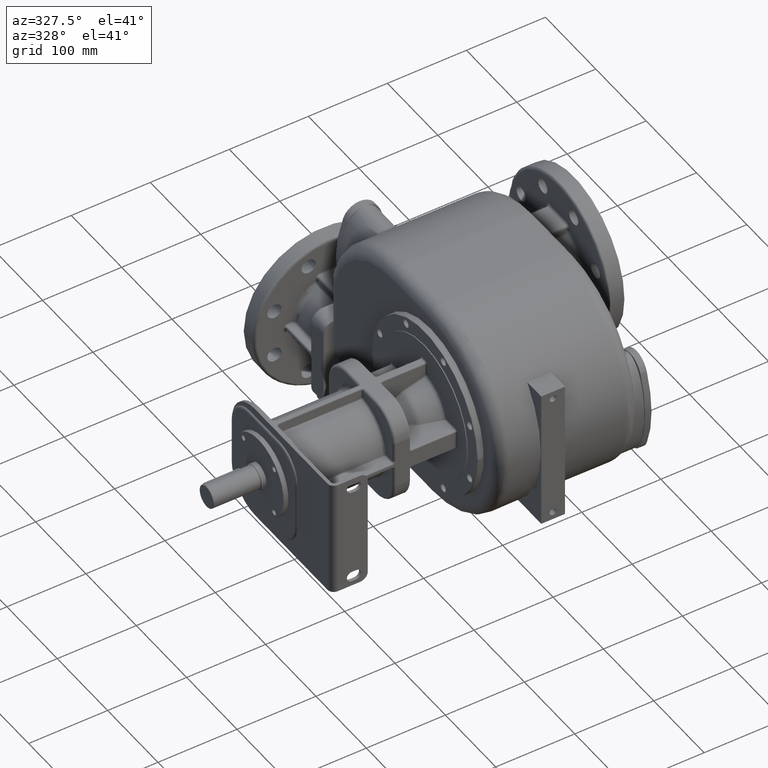
[diagram: clean part render]
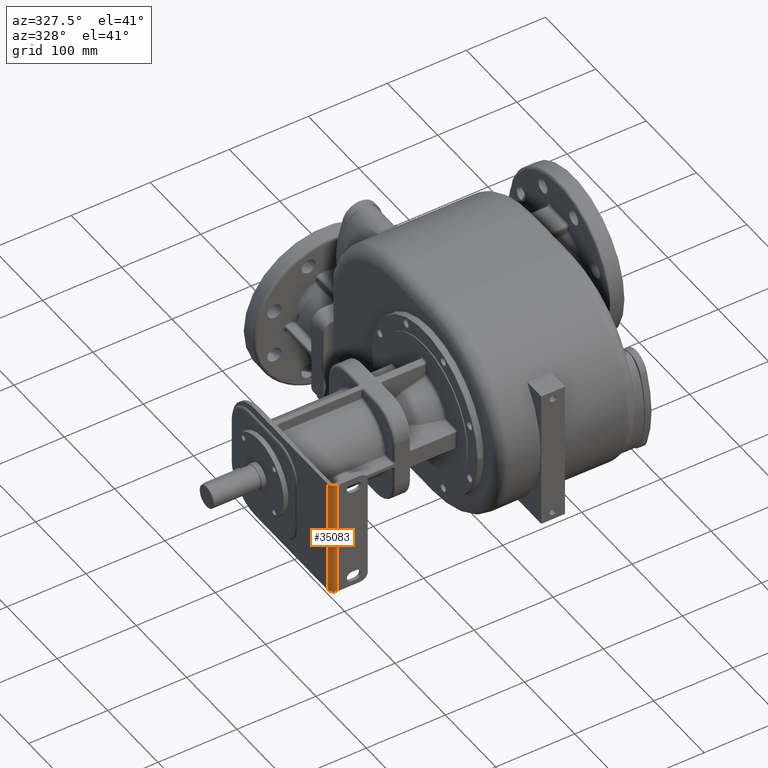
[diagram: same view with one face highlighted and labeled with its STEP entity id]
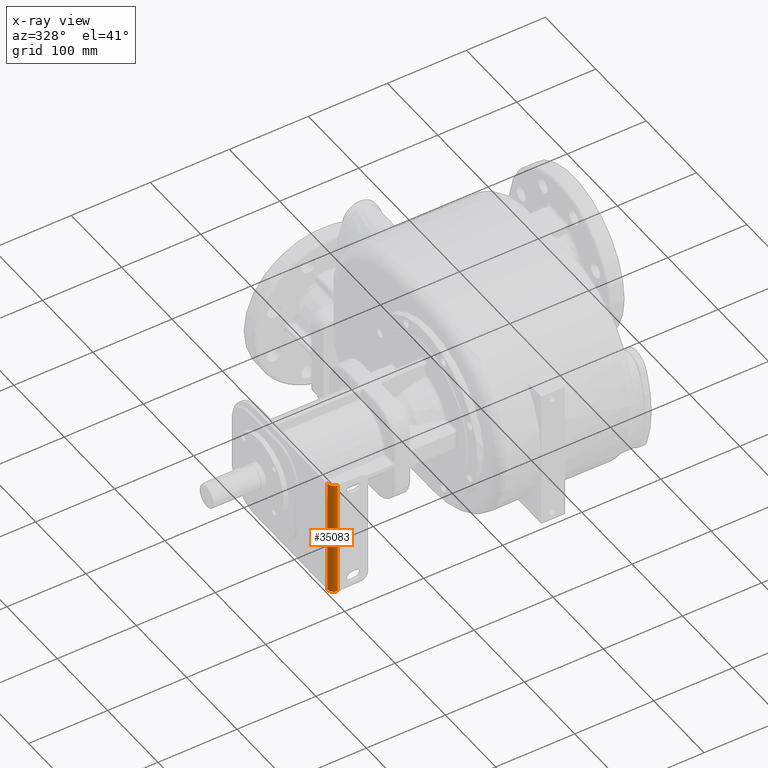
[diagram: x-ray of the same camera — body ghosted, the highlighted face saturated]
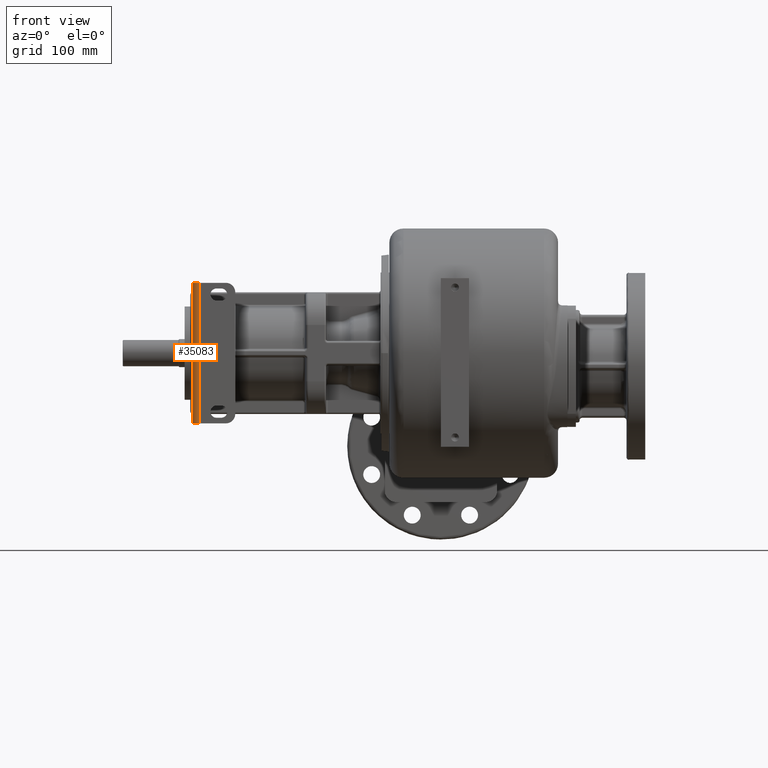
[diagram: same view with one face highlighted and labeled with its STEP entity id]
A machine part, auxiliary view. The second image highlights one B-rep face of the part: STEP entity #35083.
The next image is the same camera in x-ray: the body ghosted, the highlighted face saturated — about 0% of this face is hidden behind the body in this view.
A second angle (front view) of the same face is appended — the face is thin or edge-on in the first view.
In plain terms, the highlighted cylindrical surface (edge-blend (fillet) strip) has radius 8 mm, axis along (0, 0, -1).
Its self-contained STEP definition (entity closure, byte-faithful):
#11793=DIRECTION('',(0.E0,0.E0,1.E0));
#11794=VECTOR('',#11793,1.5E2);
#11795=CARTESIAN_POINT('',(-2.725E2,-1.057601854730E-13,-7.5E1));
#11796=LINE('',#11795,#11794);
#11797=CARTESIAN_POINT('',(-2.725E2,8.E0,-7.5E1));
#11798=DIRECTION('',(0.E0,0.E0,-1.E0));
#11799=DIRECTION('',(0.E0,-1.E0,0.E0));
#11800=AXIS2_PLACEMENT_3D('',#11797,#11798,#11799);
#11802=DIRECTION('',(0.E0,0.E0,1.E0));
#11803=VECTOR('',#11802,1.5E2);
#11804=CARTESIAN_POINT('',(-2.805E2,8.E0,-7.5E1));
#11805=LINE('',#11804,#11803);
#11806=CARTESIAN_POINT('',(-2.725E2,8.E0,7.5E1));
#11807=DIRECTION('',(0.E0,0.E0,-1.E0));
#11808=DIRECTION('',(0.E0,-1.E0,0.E0));
#11809=AXIS2_PLACEMENT_3D('',#11806,#11807,#11808);
#15584=CARTESIAN_POINT('',(-2.725E2,-1.057601854730E-13,-7.5E1));
#15585=CARTESIAN_POINT('',(-2.725E2,-6.057410837075E-14,7.5E1));
#15586=VERTEX_POINT('',#15584);
#15587=VERTEX_POINT('',#15585);
#15588=CARTESIAN_POINT('',(-2.805E2,8.E0,-7.5E1));
#15589=VERTEX_POINT('',#15588);
#15590=CARTESIAN_POINT('',(-2.805E2,8.E0,7.5E1));
#15591=VERTEX_POINT('',#15590);
#35070=CARTESIAN_POINT('',(-2.725E2,8.E0,-7.5E1));
#35071=DIRECTION('',(0.E0,0.E0,-1.E0));
#35072=DIRECTION('',(0.E0,-1.E0,0.E0));
#35073=AXIS2_PLACEMENT_3D('',#35070,#35071,#35072);
#35074=CYLINDRICAL_SURFACE('',#35073,8.E0);
#35076=ORIENTED_EDGE('',*,*,#35075,.F.);
#35078=ORIENTED_EDGE('',*,*,#35077,.T.);
#35079=ORIENTED_EDGE('',*,*,#35017,.T.);
#35080=ORIENTED_EDGE('',*,*,#35060,.F.);
#35081=EDGE_LOOP('',(#35076,#35078,#35079,#35080));
#35082=FACE_OUTER_BOUND('',#35081,.F.);
#35083=ADVANCED_FACE('',(#35082),#35074,.T.);
#11801=CIRCLE('',#11800,8.E0);
#11810=CIRCLE('',#11809,8.E0);
#35017=EDGE_CURVE('',#15589,#15591,#11805,.T.);
#35060=EDGE_CURVE('',#15587,#15591,#11810,.T.);
#35075=EDGE_CURVE('',#15586,#15587,#11796,.T.);
#35077=EDGE_CURVE('',#15586,#15589,#11801,.T.);